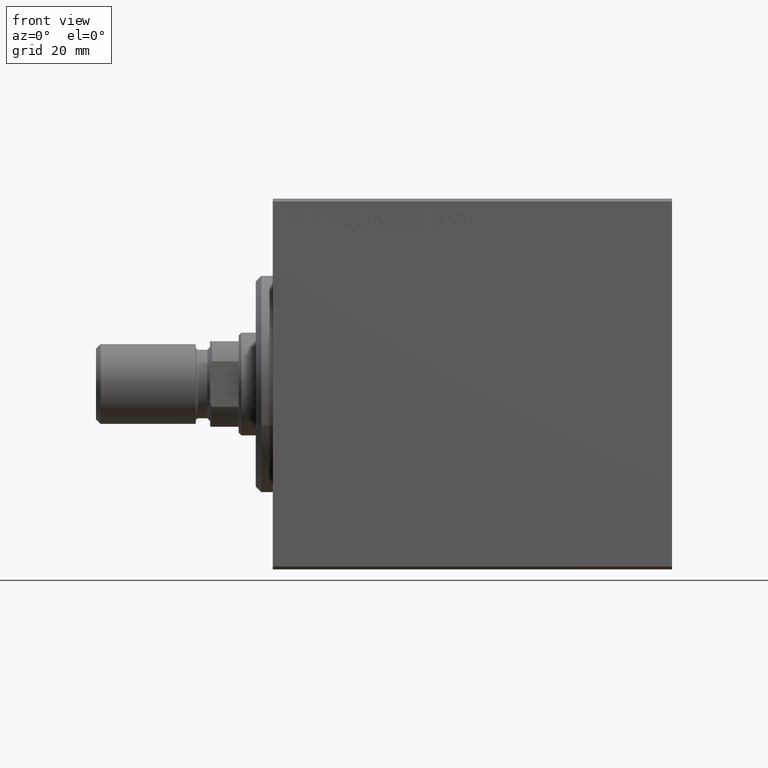
[diagram: clean part render]
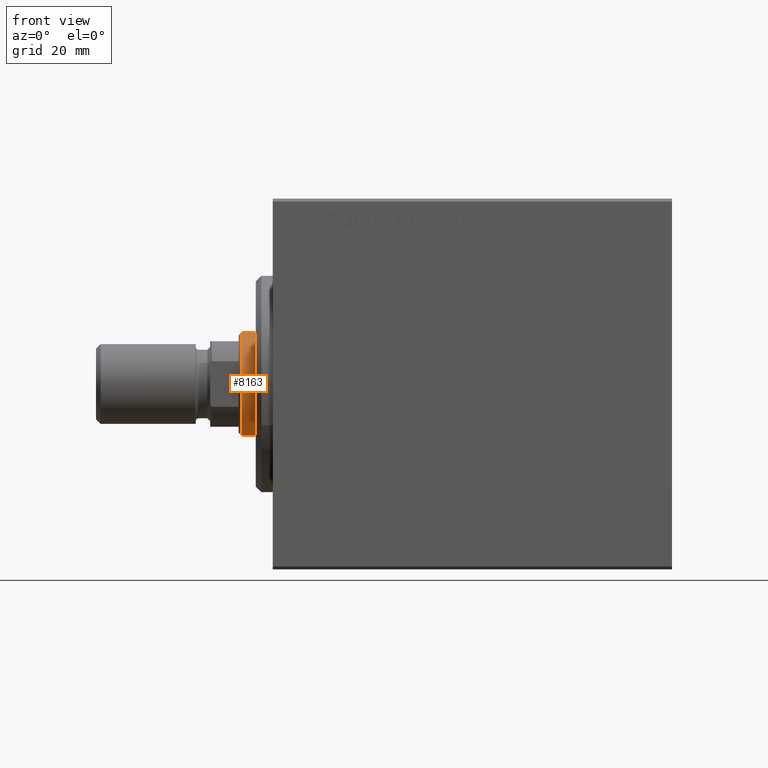
[diagram: same view with one face highlighted and labeled with its STEP entity id]
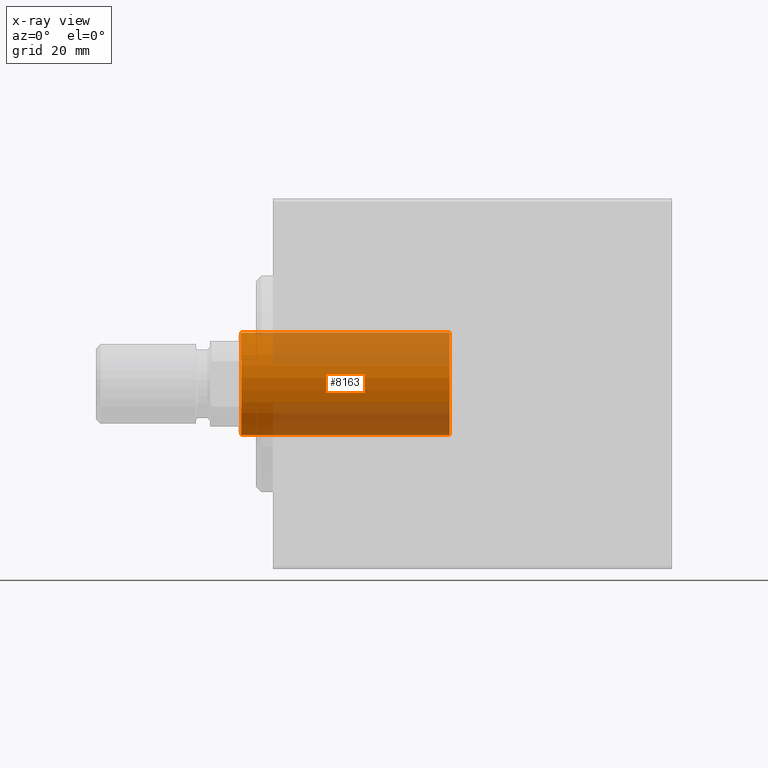
[diagram: x-ray of the same camera — body ghosted, the highlighted face saturated]
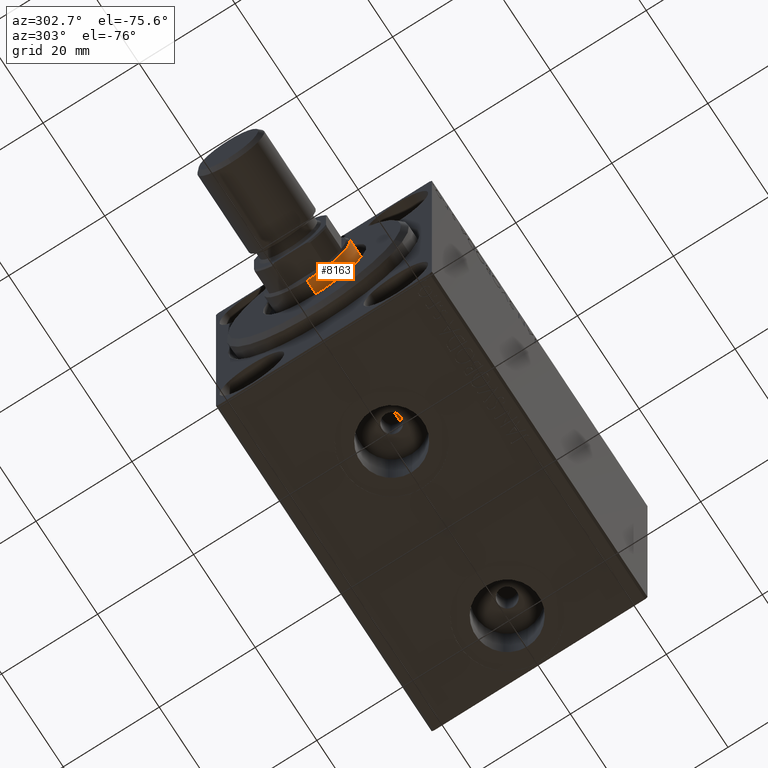
[diagram: same view with one face highlighted and labeled with its STEP entity id]
A machine part, front view. The second image highlights one B-rep face of the part: STEP entity #8163.
The next image is the same camera in x-ray: the body ghosted, the highlighted face saturated — about 53% of this face is hidden behind the body in this view.
A second angle (auxiliary view) of the same face is appended — the face is thin or edge-on in the first view.
In plain terms, the highlighted cylindrical surface (partial cylindrical patch) has radius 9 mm, axis along (1, -0, -0).
Its self-contained STEP definition (entity closure, byte-faithful):
#256 = CARTESIAN_POINT ( 'NONE',  ( -9.000000000000000000, 0.000000000000000000, 70.00000000000000000 ) ) ;
#2175 = AXIS2_PLACEMENT_3D ( 'NONE', #3541, #44208, #33649 ) ;
#3473 = EDGE_CURVE ( 'NONE', #7839, #4402, #38659, .T. ) ;
#3541 = CARTESIAN_POINT ( 'NONE',  ( 0.000000000000000000, 0.000000000000000000, 70.00000000000000000 ) ) ;
#4402 = VERTEX_POINT ( 'NONE', #28674 ) ;
#5761 = DIRECTION ( 'NONE',  ( 1.000000000000000000, 0.000000000000000000, 0.000000000000000000 ) ) ;
#6441 = DIRECTION ( 'NONE',  ( 1.000000000000000000, 0.000000000000000000, 0.000000000000000000 ) ) ;
#7839 = VERTEX_POINT ( 'NONE', #10787 ) ;
#8163 = ADVANCED_FACE ( 'NONE', ( #30502 ), #27572, .T. ) ;
#10787 = CARTESIAN_POINT ( 'NONE',  ( -9.000000000000000000, 0.000000000000000000, 33.00000000000000000 ) ) ;
#12730 = CARTESIAN_POINT ( 'NONE',  ( 0.000000000000000000, 0.000000000000000000, 33.00000000000000000 ) ) ;
#13326 = DIRECTION ( 'NONE',  ( -0.000000000000000000, -0.000000000000000000, -1.000000000000000000 ) ) ;
#15755 = LINE ( 'NONE', #18465, #18954 ) ;
#16952 = ORIENTED_EDGE ( 'NONE', *, *, #36257, .F. ) ;
#17074 = EDGE_CURVE ( 'NONE', #19387, #17215, #43320, .T. ) ;
#17215 = VERTEX_POINT ( 'NONE', #21697 ) ;
#18465 = CARTESIAN_POINT ( 'NONE',  ( 9.000000000000000000, 1.102182119232617714E-15, 70.00000000000000000 ) ) ;
#18954 = VECTOR ( 'NONE', #36405, 1000.000000000000000 ) ;
#19119 = CARTESIAN_POINT ( 'NONE',  ( 0.000000000000000000, 0.000000000000000000, 69.50000000000000000 ) ) ;
#19387 = VERTEX_POINT ( 'NONE', #26441 ) ;
#20936 = EDGE_CURVE ( 'NONE', #17215, #7839, #40491, .T. ) ;
#21697 = CARTESIAN_POINT ( 'NONE',  ( -9.000000000000000000, 0.000000000000000000, 69.50000000000000000 ) ) ;
#22529 = AXIS2_PLACEMENT_3D ( 'NONE', #19119, #33813, #6441 ) ;
#26441 = CARTESIAN_POINT ( 'NONE',  ( 9.000000000000000000, 1.102182119232617714E-15, 69.50000000000000000 ) ) ;
#27572 = CYLINDRICAL_SURFACE ( 'NONE', #2175, 9.000000000000000000 ) ;
#27812 = ORIENTED_EDGE ( 'NONE', *, *, #3473, .T. ) ;
#28674 = CARTESIAN_POINT ( 'NONE',  ( 9.000000000000000000, 1.102182119232617714E-15, 33.00000000000000000 ) ) ;
#30502 = FACE_OUTER_BOUND ( 'NONE', #31448, .T. ) ;
#31448 = EDGE_LOOP ( 'NONE', ( #16952, #35434, #32898, #27812 ) ) ;
#32898 = ORIENTED_EDGE ( 'NONE', *, *, #20936, .T. ) ;
#33649 = DIRECTION ( 'NONE',  ( -1.000000000000000000, 0.000000000000000000, 0.000000000000000000 ) ) ;
#33813 = DIRECTION ( 'NONE',  ( 0.000000000000000000, 0.000000000000000000, -1.000000000000000000 ) ) ;
#35062 = AXIS2_PLACEMENT_3D ( 'NONE', #12730, #43488, #5761 ) ;
#35434 = ORIENTED_EDGE ( 'NONE', *, *, #17074, .T. ) ;
#36257 = EDGE_CURVE ( 'NONE', #19387, #4402, #15755, .T. ) ;
#36405 = DIRECTION ( 'NONE',  ( -0.000000000000000000, -0.000000000000000000, -1.000000000000000000 ) ) ;
#38255 = VECTOR ( 'NONE', #13326, 1000.000000000000000 ) ;
#38659 = CIRCLE ( 'NONE', #35062, 9.000000000000000000 ) ;
#40491 = LINE ( 'NONE', #256, #38255 ) ;
#43320 = CIRCLE ( 'NONE', #22529, 9.000000000000000000 ) ;
#43488 = DIRECTION ( 'NONE',  ( 0.000000000000000000, 0.000000000000000000, 1.000000000000000000 ) ) ;
#44208 = DIRECTION ( 'NONE',  ( -0.000000000000000000, -0.000000000000000000, -1.000000000000000000 ) ) ;